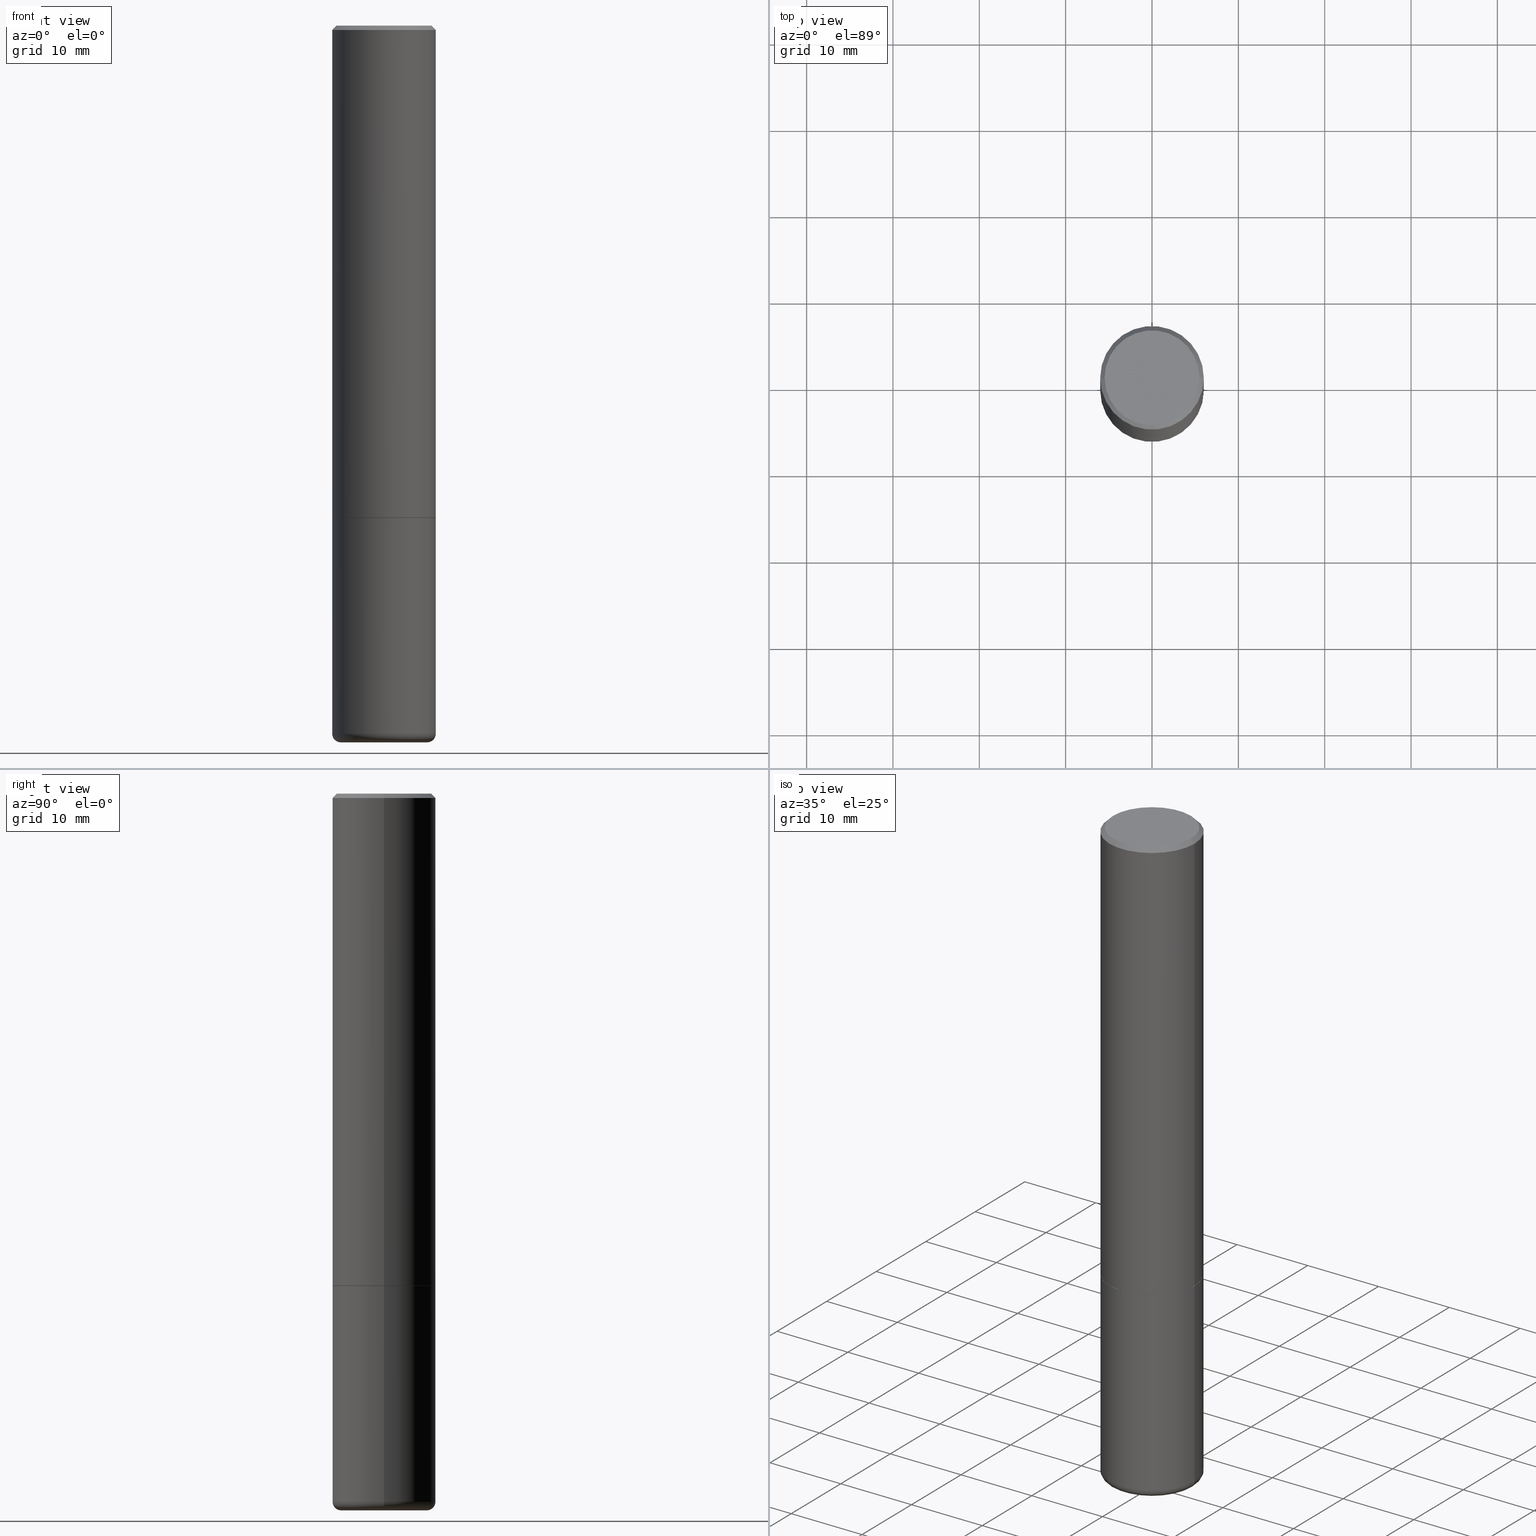
[diagram: canonical four-view strip — front | top / right | iso, engineering-drawing reading convention]
A machine part, canonical four-view strip (front | top / right | iso — engineering-drawing reading convention). The complete STEP part file that produces these views, byte-faithful:
ISO-10303-21;
HEADER;
FILE_DESCRIPTION (( 'STEP AP203' ),
    '1' );
FILE_NAME ('47019.STEP',
    '2024-03-05T11:50:57',
    ( '' ),
    ( '' ),
    'SwSTEP 2.0',
    'SolidWorks 2023',
    '' );
FILE_SCHEMA (( 'CONFIG_CONTROL_DESIGN' ));
ENDSEC;

DATA;
#1 = EDGE_LOOP ( 'NONE', ( #374, #151, #320, #314 ) ) ;
#2 = DIRECTION ( 'NONE',  ( -2.445468806185136597E-29, 3.491481338843145583E-15, 1.000000000000000000 ) ) ;
#3 = VECTOR ( 'NONE', #261, 39.37007874015748143 ) ;
#4 = LOCAL_TIME ( 6, 50, 57.00000000000000000, #416 ) ;
#5 = CARTESIAN_POINT ( 'NONE',  ( 5.485431079153880270E-29, -7.831741791159060910E-15, -2.243100000000000094 ) ) ;
#6 = PERSON_AND_ORGANIZATION ( #24, #278 ) ;
#7 = DIRECTION ( 'NONE',  ( 2.445468806185136597E-29, -3.491481338843145583E-15, -1.000000000000000000 ) ) ;
#8 = SHAPE_DEFINITION_REPRESENTATION ( #275, #395 ) ;
#9 = CARTESIAN_POINT ( 'NONE',  ( 0.2161999999999998368, -1.586759460484351002E-15, 1.451294246634248118E-16 ) ) ;
#10 = CONICAL_SURFACE ( 'NONE', #344, 0.2361999999999999933, 0.7853981633974473908 ) ;
#11 = CARTESIAN_POINT ( 'NONE',  ( -0.2351999999999999924, -6.164036757990146954E-15, -2.244099999999999984 ) ) ;
#12 = AXIS2_PLACEMENT_3D ( 'NONE', #411, #370, #207 ) ;
#13 = DIRECTION ( 'NONE',  ( 1.000000000000000000, -6.982962677686269077E-15, 0.000000000000000000 ) ) ;
#14 = ORIENTED_EDGE ( 'NONE', *, *, #393, .T. ) ;
#15 = AXIS2_PLACEMENT_3D ( 'NONE', #247, #339, #81 ) ;
#16 = DIRECTION ( 'NONE',  ( 7.105427357601001859E-15, 1.000000000000000000, -3.491481338843145583E-15 ) ) ;
#17 = DIRECTION ( 'NONE',  ( 2.438088387897960049E-29, -3.491481338843145188E-15, -1.000000000000000000 ) ) ;
#18 = CIRCLE ( 'NONE', #256, 0.1968000000000000027 ) ;
#19 = CARTESIAN_POINT ( 'NONE',  ( 7.991058417971171713E-29, -1.140911357093774644E-14, -3.267700000000000049 ) ) ;
#20 = ADVANCED_FACE ( 'NONE', ( #316 ), #27, .T. ) ;
#21 = EDGE_LOOP ( 'NONE', ( #251, #119 ) ) ;
#22 = DIRECTION ( 'NONE',  ( -2.445468806185136597E-29, 3.491481338843145583E-15, 1.000000000000000000 ) ) ;
#23 = CARTESIAN_POINT ( 'NONE',  ( 5.487876547960064752E-29, -7.835233272497902340E-15, -2.244099999999999984 ) ) ;
#24 = PERSON ( 'UNSPECIFIED', 'UNSPECIFIED', 'UNSPECIFIED', ('UNSPECIFIED'), ('UNSPECIFIED'), ('UNSPECIFIED') ) ;
#25 = DATE_AND_TIME ( #100, #123 ) ;
#26 = EDGE_LOOP ( 'NONE', ( #45, #138, #14, #32 ) ) ;
#27 = CONICAL_SURFACE ( 'NONE', #150, 0.2351999999999999924, 0.7853981633976873100 ) ;
#28 = APPLICATION_PROTOCOL_DEFINITION ( 'international standard', 'config_control_design', 1994, #305 ) ;
#29 = ORIENTED_EDGE ( 'NONE', *, *, #112, .T. ) ;
#30 = APPROVAL ( #191, 'UNSPECIFIED' ) ;
#31 = PERSON_AND_ORGANIZATION ( #24, #278 ) ;
#32 = ORIENTED_EDGE ( 'NONE', *, *, #324, .F. ) ;
#33 = DATE_AND_TIME ( #389, #108 ) ;
#34 = CARTESIAN_POINT ( 'NONE',  ( -3.549094808739746881E-45, 5.067166779293519988E-31, 1.451294246634139896E-16 ) ) ;
#35 = APPROVAL_STATUS ( 'not_yet_approved' ) ;
#36 = VECTOR ( 'NONE', #136, 39.37007874015748143 ) ;
#37 = CARTESIAN_POINT ( 'NONE',  ( 5.485431079153880270E-29, -7.831741791159060910E-15, -2.243100000000000094 ) ) ;
#38 = EDGE_CURVE ( 'NONE', #176, #340, #333, .T. ) ;
#39 = DIRECTION ( 'NONE',  ( -2.445468806185136597E-29, 3.491481338843145583E-15, 1.000000000000000000 ) ) ;
#40 = CYLINDRICAL_SURFACE ( 'NONE', #276, 0.2361999999999999933 ) ;
#41 = APPROVAL_DATE_TIME ( #383, #353 ) ;
#42 = APPROVAL_PERSON_ORGANIZATION ( #125, #30, #57 ) ;
#43 = CARTESIAN_POINT ( 'NONE',  ( 1.509716530915769534E-15, 0.2161999999999998368, -6.822935531261805704E-16 ) ) ;
#44 = ADVANCED_FACE ( 'NONE', ( #225 ), #407, .T. ) ;
#45 = ORIENTED_EDGE ( 'NONE', *, *, #351, .F. ) ;
#46 = DIRECTION ( 'NONE',  ( -2.438088387897960049E-29, 3.491481338843145188E-15, 1.000000000000000000 ) ) ;
#47 = CARTESIAN_POINT ( 'NONE',  ( 0.000000000000000000, 0.000000000000000000, 0.000000000000000000 ) ) ;
#48 = ORIENTED_EDGE ( 'NONE', *, *, #382, .F. ) ;
#49 = ADVANCED_FACE ( 'NONE', ( #55 ), #336, .T. ) ;
#50 = EDGE_LOOP ( 'NONE', ( #274, #29, #206, #48 ) ) ;
#51 = CIRCLE ( 'NONE', #292, 0.2362000000000002709 ) ;
#52 = DIRECTION ( 'NONE',  ( -2.445468806185136597E-29, 3.491481338843145583E-15, 1.000000000000000000 ) ) ;
#53 = DIRECTION ( 'NONE',  ( -2.445468806185136597E-29, 3.491481338843145583E-15, 1.000000000000000000 ) ) ;
#54 = DIRECTION ( 'NONE',  ( -2.445468806185136597E-29, 3.491481338843145583E-15, 1.000000000000000000 ) ) ;
#55 = FACE_OUTER_BOUND ( 'NONE', #26, .T. ) ;
#56 = CIRCLE ( 'NONE', #378, 0.2161999999999998368 ) ;
#57 = APPROVAL_ROLE ( '' ) ;
#58 = CC_DESIGN_APPROVAL ( #353, ( #302 ) ) ;
#59 = ORIENTED_EDGE ( 'NONE', *, *, #334, .T. ) ;
#60 = PERSON_AND_ORGANIZATION_ROLE ( 'creator' ) ;
#61 = LINE ( 'NONE', #167, #208 ) ;
#62 = ADVANCED_FACE ( 'NONE', ( #343 ), #254, .T. ) ;
#63 =( CONVERSION_BASED_UNIT ( 'INCH', #288 ) LENGTH_UNIT ( ) NAMED_UNIT ( #68 ) );
#64 = DIRECTION ( 'NONE',  ( -2.445468806185136597E-29, 3.491481338843145583E-15, 1.000000000000000000 ) ) ;
#65 = APPROVAL_STATUS ( 'not_yet_approved' ) ;
#66 = ADVANCED_FACE ( 'NONE', ( #249 ), #368, .T. ) ;
#67 = AXIS2_PLACEMENT_3D ( 'NONE', #87, #220, #186 ) ;
#68 = DIMENSIONAL_EXPONENTS ( 1.000000000000000000, 0.000000000000000000, 0.000000000000000000, 0.000000000000000000, 0.000000000000000000, 0.000000000000000000, 0.000000000000000000 ) ;
#69 = DIRECTION ( 'NONE',  ( 2.445468806185136597E-29, -3.491481338843145583E-15, -1.000000000000000000 ) ) ;
#70 = EDGE_CURVE ( 'NONE', #115, #372, #18, .T. ) ;
#71 = DIRECTION ( 'NONE',  ( -2.445468806185136877E-29, 3.491481338843145188E-15, 1.000000000000000000 ) ) ;
#72 = FACE_OUTER_BOUND ( 'NONE', #211, .T. ) ;
#73 = AXIS2_PLACEMENT_3D ( 'NONE', #183, #414, #318 ) ;
#74 = VERTEX_POINT ( 'NONE', #356 ) ;
#75 = CARTESIAN_POINT ( 'NONE',  ( 0.2361999999999999933, -1.690279253850498771E-15, -0.02000000000000005246 ) ) ;
#76 = AXIS2_PLACEMENT_3D ( 'NONE', #104, #168, #388 ) ;
#77 = ORIENTED_EDGE ( 'NONE', *, *, #396, .T. ) ;
#78 = PLANE ( 'NONE',  #190 ) ;
#79 = EDGE_CURVE ( 'NONE', #74, #246, #311, .T. ) ;
#80 = ORIENTED_EDGE ( 'NONE', *, *, #79, .F. ) ;
#81 = DIRECTION ( 'NONE',  ( 1.000000000000000000, -6.982962677686265133E-15, 0.000000000000000000 ) ) ;
#82 = DIRECTION ( 'NONE',  ( 1.000000000000000000, -6.982962677686268288E-15, 0.000000000000000000 ) ) ;
#83 = CARTESIAN_POINT ( 'NONE',  ( -3.549094808739746881E-45, 5.067166779293519988E-31, 1.451294246634139896E-16 ) ) ;
#84 = VERTEX_POINT ( 'NONE', #199 ) ;
#85 = AXIS2_PLACEMENT_3D ( 'NONE', #137, #17, #273 ) ;
#86 = CARTESIAN_POINT ( 'NONE',  ( -0.2362000000000002986, -2.272483767102600582E-15, -2.243100000000000094 ) ) ;
#87 = CARTESIAN_POINT ( 'NONE',  ( 5.487876547960064752E-29, -7.835233272497902340E-15, -2.244099999999999984 ) ) ;
#88 = PERSON_AND_ORGANIZATION ( #24, #278 ) ;
#89 = EDGE_CURVE ( 'NONE', #287, #84, #196, .T. ) ;
#90 = EDGE_LOOP ( 'NONE', ( #59, #175 ) ) ;
#91 = DIRECTION ( 'NONE',  ( 1.000000000000000000, -6.982962677686268288E-15, 0.000000000000000000 ) ) ;
#92 = AXIS2_PLACEMENT_3D ( 'NONE', #212, #16, #405 ) ;
#93 = CC_DESIGN_APPROVAL ( #30, ( #408 ) ) ;
#94 = PERSON_AND_ORGANIZATION_ROLE ( 'classification_officer' ) ;
#95 = FACE_OUTER_BOUND ( 'NONE', #21, .T. ) ;
#96 = ADVANCED_FACE ( 'NONE', ( #332 ), #40, .T. ) ;
#97 = CALENDAR_DATE ( 2024, 5, 3 ) ;
#98 = DIRECTION ( 'NONE',  ( -1.000000000000000000, 6.982962677686266711E-15, 0.000000000000000000 ) ) ;
#99 = EDGE_CURVE ( 'NONE', #381, #84, #307, .T. ) ;
#100 = CALENDAR_DATE ( 2024, 5, 3 ) ;
#101 = DIRECTION ( 'NONE',  ( -2.445468806185136597E-29, 3.491481338843145583E-15, 1.000000000000000000 ) ) ;
#102 = ADVANCED_FACE ( 'NONE', ( #72 ), #358, .T. ) ;
#103 =( GEOMETRIC_REPRESENTATION_CONTEXT ( 3 ) GLOBAL_UNCERTAINTY_ASSIGNED_CONTEXT ( ( #139 ) ) GLOBAL_UNIT_ASSIGNED_CONTEXT ( ( #63, #286, #226 ) ) REPRESENTATION_CONTEXT ( 'NONE', 'WORKASPACE' ) );
#104 = CARTESIAN_POINT ( 'NONE',  ( 5.487876547960065873E-29, -7.835233272497903917E-15, -2.244100000000000428 ) ) ;
#105 = EDGE_CURVE ( 'NONE', #272, #287, #189, .T. ) ;
#106 = FACE_OUTER_BOUND ( 'NONE', #192, .T. ) ;
#107 = LINE ( 'NONE', #309, #204 ) ;
#108 = LOCAL_TIME ( 6, 50, 57.00000000000000000, #129 ) ;
#109 = ORIENTED_EDGE ( 'NONE', *, *, #142, .F. ) ;
#110 = ORIENTED_EDGE ( 'NONE', *, *, #377, .F. ) ;
#111 = CARTESIAN_POINT ( 'NONE',  ( 0.1968000000000000027, -1.264579626115598374E-14, -3.228299999999999947 ) ) ;
#112 = EDGE_CURVE ( 'NONE', #246, #205, #61, .T. ) ;
#113 = CIRCLE ( 'NONE', #92, 0.03940000000000005997 ) ;
#114 = CIRCLE ( 'NONE', #299, 0.2351999999999999924 ) ;
#115 = VERTEX_POINT ( 'NONE', #133 ) ;
#116 = CARTESIAN_POINT ( 'NONE',  ( 0.2361999999999999933, -9.484609056967400443E-15, -2.244100000000000428 ) ) ;
#117 = ORIENTED_EDGE ( 'NONE', *, *, #99, .T. ) ;
#118 = DIRECTION ( 'NONE',  ( -2.445468806185136597E-29, 3.491481338843145583E-15, 1.000000000000000000 ) ) ;
#119 = ORIENTED_EDGE ( 'NONE', *, *, #364, .F. ) ;
#120 = DIRECTION ( 'NONE',  ( 1.000000000000000000, -6.982962677686268288E-15, 0.000000000000000000 ) ) ;
#121 = ORIENTED_EDGE ( 'NONE', *, *, #89, .F. ) ;
#122 = AXIS2_PLACEMENT_3D ( 'NONE', #166, #64, #326 ) ;
#123 = LOCAL_TIME ( 6, 50, 57.00000000000000000, #391 ) ;
#124 = ORIENTED_EDGE ( 'NONE', *, *, #393, .F. ) ;
#125 = PERSON_AND_ORGANIZATION ( #24, #278 ) ;
#126 = DIRECTION ( 'NONE',  ( -2.445468806185136597E-29, 3.491481338843145583E-15, 1.000000000000000000 ) ) ;
#127 = CARTESIAN_POINT ( 'NONE',  ( 0.2351999999999999924, -9.477626094289712851E-15, -2.244099999999999984 ) ) ;
#128 = VECTOR ( 'NONE', #71, 39.37007874015748143 ) ;
#129 = COORDINATED_UNIVERSAL_TIME_OFFSET ( 5, 0, .BEHIND. ) ;
#130 = DIRECTION ( 'NONE',  ( 1.000000000000000000, -6.982962677686269077E-15, 0.000000000000000000 ) ) ;
#131 = APPROVAL_DATE_TIME ( #33, #404 ) ;
#132 = DIRECTION ( 'NONE',  ( 1.000000000000000000, -6.982962677686266711E-15, 4.881916136609865378E-29 ) ) ;
#133 = CARTESIAN_POINT ( 'NONE',  ( 0.1968000000000000027, -1.278336062590640454E-14, -3.267700000000000049 ) ) ;
#134 = PRODUCT_DEFINITION ( 'UNKNOWN', '', #408, #187 ) ;
#135 = AXIS2_PLACEMENT_3D ( 'NONE', #19, #54, #267 ) ;
#136 = DIRECTION ( 'NONE',  ( -0.7071067811867165487, 7.493145998870964739E-15, 0.7071067811863784858 ) ) ;
#137 = CARTESIAN_POINT ( 'NONE',  ( 5.487876547960065873E-29, -7.835233272497903917E-15, -2.244100000000000428 ) ) ;
#138 = ORIENTED_EDGE ( 'NONE', *, *, #364, .T. ) ;
#139 = UNCERTAINTY_MEASURE_WITH_UNIT (LENGTH_MEASURE( 1.000000000000000082E-05 ), #63, 'distance_accuracy_value', 'NONE');
#140 = VECTOR ( 'NONE', #243, 39.37007874015748143 ) ;
#141 = CC_DESIGN_SECURITY_CLASSIFICATION ( #302, ( #408 ) ) ;
#142 = EDGE_CURVE ( 'NONE', #146, #304, #216, .T. ) ;
#143 = CC_DESIGN_PERSON_AND_ORGANIZATION_ASSIGNMENT ( #387, #94, ( #302 ) ) ;
#144 = ORIENTED_EDGE ( 'NONE', *, *, #382, .T. ) ;
#145 = DIRECTION ( 'NONE',  ( 1.000000000000000000, -6.982962677686266711E-15, 4.881916136609865378E-29 ) ) ;
#146 = VERTEX_POINT ( 'NONE', #9 ) ;
#147 = ADVANCED_FACE ( 'NONE', ( #106 ), #262, .T. ) ;
#148 = CARTESIAN_POINT ( 'NONE',  ( 0.2362000000000002709, -9.481117575628559013E-15, -2.243100000000000094 ) ) ;
#149 = CLOSED_SHELL ( 'NONE', ( #96, #44, #271, #62, #49, #222 ) ) ;
#150 = AXIS2_PLACEMENT_3D ( 'NONE', #412, #386, #82 ) ;
#151 = ORIENTED_EDGE ( 'NONE', *, *, #214, .T. ) ;
#152 = PLANE ( 'NONE',  #85 ) ;
#153 = ORIENTED_EDGE ( 'NONE', *, *, #112, .F. ) ;
#154 = CARTESIAN_POINT ( 'NONE',  ( 0.2361999999999999933, -1.690279253850498771E-15, -0.02000000000000005246 ) ) ;
#155 = CLOSED_SHELL ( 'NONE', ( #66, #239, #171, #102, #147, #20, #398, #159 ) ) ;
#156 = ORIENTED_EDGE ( 'NONE', *, *, #38, .F. ) ;
#157 = AXIS2_PLACEMENT_3D ( 'NONE', #282, #2, #223 ) ;
#158 = EDGE_LOOP ( 'NONE', ( #289, #306, #402, #308 ) ) ;
#159 = ADVANCED_FACE ( 'NONE', ( #394 ), #259, .F. ) ;
#160 = SECURITY_CLASSIFICATION_LEVEL ( 'unclassified' ) ;
#161 = ORIENTED_EDGE ( 'NONE', *, *, #348, .F. ) ;
#162 = DATE_AND_TIME ( #193, #294 ) ;
#163 = DIRECTION ( 'NONE',  ( 1.000000000000000000, -6.982962677686266711E-15, 4.876176775795936353E-29 ) ) ;
#164 = AXIS2_PLACEMENT_3D ( 'NONE', #47, #22, #281 ) ;
#165 = APPROVAL_ROLE ( '' ) ;
#166 = CARTESIAN_POINT ( 'NONE',  ( 4.890937612370285420E-31, -6.982962677686308865E-17, -0.02000000000000005246 ) ) ;
#167 = CARTESIAN_POINT ( 'NONE',  ( -0.2361999999999999933, 1.678301941865356591E-15, -1.161852468318208757E-29 ) ) ;
#168 = DIRECTION ( 'NONE',  ( -2.445468806185136597E-29, 3.491481338843145583E-15, 1.000000000000000000 ) ) ;
#169 = APPROVAL_PERSON_ORGANIZATION ( #88, #404, #325 ) ;
#170 = CARTESIAN_POINT ( 'NONE',  ( -0.2362000000000001321, 1.678301941865357577E-15, -1.161852468318209457E-29 ) ) ;
#171 = ADVANCED_FACE ( 'NONE', ( #293 ), #10, .T. ) ;
#172 = ORIENTED_EDGE ( 'NONE', *, *, #89, .T. ) ;
#173 = ORIENTED_EDGE ( 'NONE', *, *, #70, .T. ) ;
#174 = AXIS2_PLACEMENT_3D ( 'NONE', #37, #39, #130 ) ;
#175 = ORIENTED_EDGE ( 'NONE', *, *, #198, .T. ) ;
#176 = VERTEX_POINT ( 'NONE', #127 ) ;
#177 = DIRECTION ( 'NONE',  ( 1.000000000000000000, -6.982962677686265922E-15, 4.876176775795935793E-29 ) ) ;
#178 =( LENGTH_UNIT ( ) NAMED_UNIT ( * ) SI_UNIT ( $, .METRE. ) );
#179 = AXIS2_PLACEMENT_3D ( 'NONE', #43, #230, #231 ) ;
#180 = APPROVAL_PERSON_ORGANIZATION ( #258, #353, #165 ) ;
#181 = ORIENTED_EDGE ( 'NONE', *, *, #396, .F. ) ;
#182 = CARTESIAN_POINT ( 'NONE',  ( -0.2161999999999998368, 1.544631344304201775E-15, 1.451294246634033154E-16 ) ) ;
#183 = CARTESIAN_POINT ( 'NONE',  ( 0.000000000000000000, 0.000000000000000000, 0.000000000000000000 ) ) ;
#184 = DIRECTION ( 'NONE',  ( -6.982962677686266711E-15, -1.000000000000000000, 3.491481338843145583E-15 ) ) ;
#185 = EDGE_CURVE ( 'NONE', #304, #84, #392, .T. ) ;
#186 = DIRECTION ( 'NONE',  ( 1.000000000000000000, -6.982962677686268288E-15, 0.000000000000000000 ) ) ;
#187 = DESIGN_CONTEXT ( 'detailed design', #342, 'design' ) ;
#188 = EDGE_LOOP ( 'NONE', ( #156, #161 ) ) ;
#189 = CIRCLE ( 'NONE', #174, 0.2362000000000002709 ) ;
#190 = AXIS2_PLACEMENT_3D ( 'NONE', #210, #46, #177 ) ;
#191 = APPROVAL_STATUS ( 'not_yet_approved' ) ;
#192 = EDGE_LOOP ( 'NONE', ( #121, #349, #352, #181 ) ) ;
#193 = CALENDAR_DATE ( 2024, 5, 3 ) ;
#194 = DIRECTION ( 'NONE',  ( -1.000000000000000000, 6.982962677686265922E-15, -4.876176775795935793E-29 ) ) ;
#195 = APPROVAL_DATE_TIME ( #25, #30 ) ;
#196 = LINE ( 'NONE', #170, #128 ) ;
#197 = VECTOR ( 'NONE', #245, 39.37007874015748143 ) ;
#198 = EDGE_CURVE ( 'NONE', #205, #323, #237, .T. ) ;
#199 = CARTESIAN_POINT ( 'NONE',  ( -0.2361999999999999933, 1.579546157692633030E-15, -0.02000000000000005246 ) ) ;
#200 = PRODUCT ( '47019', '47019', '', ( #357 ) ) ;
#201 = DIRECTION ( 'NONE',  ( 1.000000000000000000, -6.982962677686271444E-15, 0.000000000000000000 ) ) ;
#202 = DIRECTION ( 'NONE',  ( -2.445468806185136877E-29, 3.491481338843145188E-15, 1.000000000000000000 ) ) ;
#203 = AXIS2_PLACEMENT_3D ( 'NONE', #417, #126, #213 ) ;
#204 = VECTOR ( 'NONE', #367, 39.37007874015748143 ) ;
#205 = VERTEX_POINT ( 'NONE', #362 ) ;
#206 = ORIENTED_EDGE ( 'NONE', *, *, #334, .F. ) ;
#207 = DIRECTION ( 'NONE',  ( 1.000000000000000000, -6.982962677686266711E-15, 0.000000000000000000 ) ) ;
#208 = VECTOR ( 'NONE', #202, 39.37007874015748143 ) ;
#209 = ORIENTED_EDGE ( 'NONE', *, *, #351, .T. ) ;
#210 = CARTESIAN_POINT ( 'NONE',  ( 5.487876547960065873E-29, -7.835233272497903917E-15, -2.244100000000000428 ) ) ;
#211 = EDGE_LOOP ( 'NONE', ( #403, #335, #346, #77 ) ) ;
#212 = CARTESIAN_POINT ( 'NONE',  ( -0.1968000000000000027, -9.873201102211451027E-15, -3.228299999999999947 ) ) ;
#213 = DIRECTION ( 'NONE',  ( 1.000000000000000000, -6.982962677686270655E-15, 4.883557194083114583E-29 ) ) ;
#214 = EDGE_CURVE ( 'NONE', #340, #287, #298, .T. ) ;
#215 = FACE_OUTER_BOUND ( 'NONE', #354, .T. ) ;
#216 = CIRCLE ( 'NONE', #232, 0.2161999999999998368 ) ;
#217 = AXIS2_PLACEMENT_3D ( 'NONE', #111, #184, #240 ) ;
#218 = ORIENTED_EDGE ( 'NONE', *, *, #185, .F. ) ;
#219 = DIRECTION ( 'NONE',  ( -2.445468806185136597E-29, 3.491481338843145583E-15, 1.000000000000000000 ) ) ;
#220 = DIRECTION ( 'NONE',  ( -2.445468806185136597E-29, 3.491481338843145583E-15, 1.000000000000000000 ) ) ;
#221 = COORDINATED_UNIVERSAL_TIME_OFFSET ( 5, 0, .BEHIND. ) ;
#222 = ADVANCED_FACE ( 'NONE', ( #95 ), #266, .T. ) ;
#223 = DIRECTION ( 'NONE',  ( 1.000000000000000000, -6.982962677686270655E-15, 4.883557194083114583E-29 ) ) ;
#224 = PERSON_AND_ORGANIZATION_ROLE ( 'design_owner' ) ;
#225 = FACE_OUTER_BOUND ( 'NONE', #270, .T. ) ;
#226 =( NAMED_UNIT ( * ) SI_UNIT ( $, .STERADIAN. ) SOLID_ANGLE_UNIT ( ) );
#227 = MANIFOLD_SOLID_BREP ( 'Body-Move/Copy2[1]', #149 ) ;
#228 = DIRECTION ( 'NONE',  ( 2.438088387897960049E-29, -3.491481338843145188E-15, -1.000000000000000000 ) ) ;
#229 = APPLICATION_PROTOCOL_DEFINITION ( 'international standard', 'config_control_design', 1994, #342 ) ;
#230 = DIRECTION ( 'NONE',  ( 2.438088387897960049E-29, -3.491481338843145188E-15, -1.000000000000000000 ) ) ;
#231 = DIRECTION ( 'NONE',  ( -1.000000000000000000, 6.982962677686265922E-15, -4.876176775795935793E-29 ) ) ;
#232 = AXIS2_PLACEMENT_3D ( 'NONE', #34, #297, #132 ) ;
#233 = DIRECTION ( 'NONE',  ( -1.000000000000000000, 6.982962677686266711E-15, 0.000000000000000000 ) ) ;
#234 = EDGE_CURVE ( 'NONE', #287, #272, #51, .T. ) ;
#235 = CARTESIAN_POINT ( 'NONE',  ( 7.991058417971171713E-29, -1.140911357093774644E-14, -3.267700000000000049 ) ) ;
#236 = CYLINDRICAL_SURFACE ( 'NONE', #164, 0.2362000000000001321 ) ;
#237 = CIRCLE ( 'NONE', #76, 0.2361999999999999933 ) ;
#238 = EDGE_LOOP ( 'NONE', ( #244, #406 ) ) ;
#239 = ADVANCED_FACE ( 'NONE', ( #215 ), #236, .T. ) ;
#240 = DIRECTION ( 'NONE',  ( 1.000000000000000000, -6.982962677686267499E-15, 0.000000000000000000 ) ) ;
#241 = CIRCLE ( 'NONE', #15, 0.2361999999999999933 ) ;
#242 = ORIENTED_EDGE ( 'NONE', *, *, #324, .T. ) ;
#243 = DIRECTION ( 'NONE',  ( 0.7071067811867165487, -2.468850131084027659E-15, 0.7071067811863784858 ) ) ;
#244 = ORIENTED_EDGE ( 'NONE', *, *, #295, .T. ) ;
#245 = DIRECTION ( 'NONE',  ( 0.7071067811865469066, -7.319954787623254468E-15, -0.7071067811865481278 ) ) ;
#246 = VERTEX_POINT ( 'NONE', #310 ) ;
#247 = CARTESIAN_POINT ( 'NONE',  ( 7.894706947007477118E-29, -1.127154920618732880E-14, -3.228299999999999947 ) ) ;
#248 = CIRCLE ( 'NONE', #300, 0.2361999999999999933 ) ;
#249 = FACE_OUTER_BOUND ( 'NONE', #1, .T. ) ;
#250 = CALENDAR_DATE ( 2024, 5, 3 ) ;
#251 = ORIENTED_EDGE ( 'NONE', *, *, #70, .F. ) ;
#252 = DIRECTION ( 'NONE',  ( 1.000000000000000000, 0.000000000000000000, 0.000000000000000000 ) ) ;
#253 = CC_DESIGN_DATE_AND_TIME_ASSIGNMENT ( #260, #317, ( #134 ) ) ;
#254 = CYLINDRICAL_SURFACE ( 'NONE', #73, 0.2361999999999999933 ) ;
#255 = PERSON_AND_ORGANIZATION ( #24, #278 ) ;
#256 = AXIS2_PLACEMENT_3D ( 'NONE', #285, #397, #201 ) ;
#257 = CARTESIAN_POINT ( 'NONE',  ( 4.890937612370285420E-31, -6.982962677686308865E-17, -0.02000000000000005246 ) ) ;
#258 = PERSON_AND_ORGANIZATION ( #24, #278 ) ;
#259 = PLANE ( 'NONE',  #179 ) ;
#260 = DATE_AND_TIME ( #97, #401 ) ;
#261 = DIRECTION ( 'NONE',  ( -0.7071067811865469066, 2.468850131082250355E-15, -0.7071067811865481278 ) ) ;
#262 = CYLINDRICAL_SURFACE ( 'NONE', #263, 0.2362000000000001321 ) ;
#263 = AXIS2_PLACEMENT_3D ( 'NONE', #296, #328, #163 ) ;
#264 = PRODUCT_RELATED_PRODUCT_CATEGORY ( 'detail', '', ( #200 ) ) ;
#265 = AXIS2_PLACEMENT_3D ( 'NONE', #350, #385, #252 ) ;
#266 = PLANE ( 'NONE',  #319 ) ;
#267 = DIRECTION ( 'NONE',  ( 1.000000000000000000, -6.982962677686271444E-15, 0.000000000000000000 ) ) ;
#268 = AXIS2_PLACEMENT_3D ( 'NONE', #23, #53, #91 ) ;
#269 = CIRCLE ( 'NONE', #135, 0.1968000000000000027 ) ;
#270 = EDGE_LOOP ( 'NONE', ( #173, #209, #80, #124 ) ) ;
#271 = ADVANCED_FACE ( 'NONE', ( #409 ), #152, .F. ) ;
#272 = VERTEX_POINT ( 'NONE', #148 ) ;
#273 = DIRECTION ( 'NONE',  ( -1.000000000000000000, 6.982962677686265922E-15, -4.876176775795935793E-29 ) ) ;
#274 = ORIENTED_EDGE ( 'NONE', *, *, #79, .T. ) ;
#275 = PRODUCT_DEFINITION_SHAPE ( 'NONE', 'NONE',  #134 ) ;
#276 = AXIS2_PLACEMENT_3D ( 'NONE', #390, #330, #329 ) ;
#277 = CARTESIAN_POINT ( 'NONE',  ( 0.2351999999999999924, -9.477626094289712851E-15, -2.244099999999999984 ) ) ;
#278 = ORGANIZATION ( 'UNSPECIFIED', 'UNSPECIFIED', '' ) ;
#279 = DIRECTION ( 'NONE',  ( -2.445468806185136877E-29, 3.491481338843145188E-15, 1.000000000000000000 ) ) ;
#280 = ORIENTED_EDGE ( 'NONE', *, *, #198, .F. ) ;
#281 = DIRECTION ( 'NONE',  ( 1.000000000000000000, -6.982962677686266711E-15, 4.876176775795936353E-29 ) ) ;
#282 = CARTESIAN_POINT ( 'NONE',  ( 7.894706947007477118E-29, -1.127154920618732880E-14, -3.228299999999999947 ) ) ;
#283 = COORDINATED_UNIVERSAL_TIME_OFFSET ( 5, 0, .BEHIND. ) ;
#284 = VECTOR ( 'NONE', #279, 39.37007874015748143 ) ;
#285 = CARTESIAN_POINT ( 'NONE',  ( 7.991058417971171713E-29, -1.140911357093774644E-14, -3.267700000000000049 ) ) ;
#286 =( NAMED_UNIT ( * ) PLANE_ANGLE_UNIT ( ) SI_UNIT ( $, .RADIAN. ) );
#287 = VERTEX_POINT ( 'NONE', #86 ) ;
#288 = LENGTH_MEASURE_WITH_UNIT ( LENGTH_MEASURE( 0.02539999999999999897 ), #178 );
#289 = ORIENTED_EDGE ( 'NONE', *, *, #214, .F. ) ;
#290 = DATE_TIME_ROLE ( 'classification_date' ) ;
#291 = EDGE_CURVE ( 'NONE', #176, #272, #379, .T. ) ;
#292 = AXIS2_PLACEMENT_3D ( 'NONE', #5, #52, #413 ) ;
#293 = FACE_OUTER_BOUND ( 'NONE', #338, .T. ) ;
#294 = LOCAL_TIME ( 6, 50, 57.00000000000000000, #283 ) ;
#295 = EDGE_CURVE ( 'NONE', #304, #146, #56, .T. ) ;
#296 = CARTESIAN_POINT ( 'NONE',  ( 0.000000000000000000, 0.000000000000000000, 0.000000000000000000 ) ) ;
#297 = DIRECTION ( 'NONE',  ( -2.445468806185136597E-29, 3.491481338843145583E-15, 1.000000000000000000 ) ) ;
#298 = LINE ( 'NONE', #11, #36 ) ;
#299 = AXIS2_PLACEMENT_3D ( 'NONE', #315, #373, #120 ) ;
#300 = AXIS2_PLACEMENT_3D ( 'NONE', #312, #219, #13 ) ;
#301 = CC_DESIGN_PERSON_AND_ORGANIZATION_ASSIGNMENT ( #31, #322, ( #408 ) ) ;
#302 = SECURITY_CLASSIFICATION ( '', '', #160 ) ;
#303 = CARTESIAN_POINT ( 'NONE',  ( 7.894706947007477118E-29, -1.127154920618732880E-14, -3.228299999999999947 ) ) ;
#304 = VERTEX_POINT ( 'NONE', #182 ) ;
#305 = APPLICATION_CONTEXT ( 'configuration controlled 3d designs of mechanical parts and assemblies' ) ;
#306 = ORIENTED_EDGE ( 'NONE', *, *, #348, .T. ) ;
#307 = CIRCLE ( 'NONE', #122, 0.2361999999999999933 ) ;
#308 = ORIENTED_EDGE ( 'NONE', *, *, #234, .F. ) ;
#309 = CARTESIAN_POINT ( 'NONE',  ( 0.2361999999999999933, -1.649375784469496131E-15, 1.151752954443000088E-29 ) ) ;
#310 = CARTESIAN_POINT ( 'NONE',  ( -0.2362000000000000210, -9.593247264321970832E-15, -3.228299999999999947 ) ) ;
#311 = CIRCLE ( 'NONE', #415, 0.2361999999999999933 ) ;
#312 = CARTESIAN_POINT ( 'NONE',  ( 5.487876547960065873E-29, -7.835233272497903917E-15, -2.244100000000000428 ) ) ;
#313 = CIRCLE ( 'NONE', #217, 0.03940000000000005997 ) ;
#314 = ORIENTED_EDGE ( 'NONE', *, *, #291, .F. ) ;
#315 = CARTESIAN_POINT ( 'NONE',  ( 5.487876547960064752E-29, -7.835233272497902340E-15, -2.244099999999999984 ) ) ;
#316 = FACE_OUTER_BOUND ( 'NONE', #158, .T. ) ;
#317 = DATE_TIME_ROLE ( 'creation_date' ) ;
#318 = DIRECTION ( 'NONE',  ( 1.000000000000000000, -6.982962677686266711E-15, 4.876176775795936353E-29 ) ) ;
#319 = AXIS2_PLACEMENT_3D ( 'NONE', #235, #228, #194 ) ;
#320 = ORIENTED_EDGE ( 'NONE', *, *, #105, .F. ) ;
#321 = EDGE_CURVE ( 'NONE', #146, #381, #345, .T. ) ;
#322 = PERSON_AND_ORGANIZATION_ROLE ( 'design_supplier' ) ;
#323 = VERTEX_POINT ( 'NONE', #116 ) ;
#324 = EDGE_CURVE ( 'NONE', #246, #74, #241, .T. ) ;
#325 = APPROVAL_ROLE ( '' ) ;
#326 = DIRECTION ( 'NONE',  ( 1.000000000000000000, -6.982962677686266711E-15, 0.000000000000000000 ) ) ;
#327 = PERSON_AND_ORGANIZATION_ROLE ( 'creator' ) ;
#328 = DIRECTION ( 'NONE',  ( -2.445468806185136597E-29, 3.491481338843145583E-15, 1.000000000000000000 ) ) ;
#329 = DIRECTION ( 'NONE',  ( 1.000000000000000000, -6.982962677686266711E-15, 4.876176775795936353E-29 ) ) ;
#330 = DIRECTION ( 'NONE',  ( -2.445468806185136597E-29, 3.491481338843145583E-15, 1.000000000000000000 ) ) ;
#331 = CC_DESIGN_PERSON_AND_ORGANIZATION_ASSIGNMENT ( #418, #60, ( #134 ) ) ;
#332 = FACE_OUTER_BOUND ( 'NONE', #50, .T. ) ;
#333 = CIRCLE ( 'NONE', #268, 0.2351999999999999924 ) ;
#334 = EDGE_CURVE ( 'NONE', #323, #205, #248, .T. ) ;
#335 = ORIENTED_EDGE ( 'NONE', *, *, #295, .F. ) ;
#336 = TOROIDAL_SURFACE ( 'NONE', #157, 0.1968000000000000027, 0.03940000000000005997 ) ;
#337 = FACE_OUTER_BOUND ( 'NONE', #188, .T. ) ;
#338 = EDGE_LOOP ( 'NONE', ( #109, #384, #117, #218 ) ) ;
#339 = DIRECTION ( 'NONE',  ( -2.445468806185136597E-29, 3.491481338843145583E-15, 1.000000000000000000 ) ) ;
#340 = VERTEX_POINT ( 'NONE', #347 ) ;
#341 = CARTESIAN_POINT ( 'NONE',  ( -0.1968000000000000027, -9.802006365641922115E-15, -3.267700000000000049 ) ) ;
#342 = APPLICATION_CONTEXT ( 'configuration controlled 3d designs of mechanical parts and assemblies' ) ;
#343 = FACE_OUTER_BOUND ( 'NONE', #400, .T. ) ;
#344 = AXIS2_PLACEMENT_3D ( 'NONE', #359, #69, #233 ) ;
#345 = LINE ( 'NONE', #75, #197 ) ;
#346 = ORIENTED_EDGE ( 'NONE', *, *, #185, .T. ) ;
#347 = CARTESIAN_POINT ( 'NONE',  ( -0.2351999999999999924, -6.158738303641923763E-15, -2.244099999999999984 ) ) ;
#348 = EDGE_CURVE ( 'NONE', #340, #176, #114, .T. ) ;
#349 = ORIENTED_EDGE ( 'NONE', *, *, #234, .T. ) ;
#350 = CARTESIAN_POINT ( 'NONE',  ( 0.000000000000000000, 0.000000000000000000, 0.000000000000000000 ) ) ;
#351 = EDGE_CURVE ( 'NONE', #372, #246, #113, .T. ) ;
#352 = ORIENTED_EDGE ( 'NONE', *, *, #377, .T. ) ;
#353 = APPROVAL ( #35, 'UNSPECIFIED' ) ;
#354 = EDGE_LOOP ( 'NONE', ( #410, #172, #376, #110 ) ) ;
#355 = DIRECTION ( 'NONE',  ( 1.000000000000000000, -6.982962677686265133E-15, 0.000000000000000000 ) ) ;
#356 = CARTESIAN_POINT ( 'NONE',  ( 0.2362000000000000210, -1.292092499065682375E-14, -3.228299999999999947 ) ) ;
#357 = MECHANICAL_CONTEXT ( 'NONE', #305, 'mechanical' ) ;
#358 = CONICAL_SURFACE ( 'NONE', #363, 0.2361999999999999933, 0.7853981633974473908 ) ;
#359 = CARTESIAN_POINT ( 'NONE',  ( 4.890937612370285420E-31, -6.982962677686308865E-17, -0.02000000000000005246 ) ) ;
#360 = CC_DESIGN_PERSON_AND_ORGANIZATION_ASSIGNMENT ( #6, #224, ( #200 ) ) ;
#361 = CARTESIAN_POINT ( 'NONE',  ( -0.2361999999999999933, 1.579546157692633030E-15, -0.02000000000000005246 ) ) ;
#362 = CARTESIAN_POINT ( 'NONE',  ( -0.2361999999999999933, -7.875089297477259967E-15, -2.244100000000000428 ) ) ;
#363 = AXIS2_PLACEMENT_3D ( 'NONE', #257, #7, #98 ) ;
#364 = EDGE_CURVE ( 'NONE', #372, #115, #269, .T. ) ;
#365 = CIRCLE ( 'NONE', #12, 0.2361999999999999933 ) ;
#366 = CC_DESIGN_DATE_AND_TIME_ASSIGNMENT ( #162, #290, ( #302 ) ) ;
#367 = DIRECTION ( 'NONE',  ( -2.445468806185136877E-29, 3.491481338843145188E-15, 1.000000000000000000 ) ) ;
#368 = CONICAL_SURFACE ( 'NONE', #67, 0.2351999999999999924, 0.7853981633976873100 ) ;
#369 = MANIFOLD_SOLID_BREP ( 'Body-Move/Copy2[2]', #155 ) ;
#370 = DIRECTION ( 'NONE',  ( -2.445468806185136597E-29, 3.491481338843145583E-15, 1.000000000000000000 ) ) ;
#371 = CC_DESIGN_PERSON_AND_ORGANIZATION_ASSIGNMENT ( #255, #327, ( #408 ) ) ;
#372 = VERTEX_POINT ( 'NONE', #341 ) ;
#373 = DIRECTION ( 'NONE',  ( -2.445468806185136597E-29, 3.491481338843145583E-15, 1.000000000000000000 ) ) ;
#374 = ORIENTED_EDGE ( 'NONE', *, *, #38, .T. ) ;
#375 = CARTESIAN_POINT ( 'NONE',  ( 0.2362000000000001321, -1.649375784469497117E-15, 1.151752954443000789E-29 ) ) ;
#376 = ORIENTED_EDGE ( 'NONE', *, *, #99, .F. ) ;
#377 = EDGE_CURVE ( 'NONE', #272, #381, #399, .T. ) ;
#378 = AXIS2_PLACEMENT_3D ( 'NONE', #83, #118, #145 ) ;
#379 = LINE ( 'NONE', #277, #140 ) ;
#380 = CC_DESIGN_APPROVAL ( #404, ( #134 ) ) ;
#381 = VERTEX_POINT ( 'NONE', #154 ) ;
#382 = EDGE_CURVE ( 'NONE', #74, #323, #107, .T. ) ;
#383 = DATE_AND_TIME ( #250, #4 ) ;
#384 = ORIENTED_EDGE ( 'NONE', *, *, #321, .T. ) ;
#385 = DIRECTION ( 'NONE',  ( 0.000000000000000000, 0.000000000000000000, 1.000000000000000000 ) ) ;
#386 = DIRECTION ( 'NONE',  ( -2.445468806185136597E-29, 3.491481338843145583E-15, 1.000000000000000000 ) ) ;
#387 = PERSON_AND_ORGANIZATION ( #24, #278 ) ;
#388 = DIRECTION ( 'NONE',  ( 1.000000000000000000, -6.982962677686269077E-15, 0.000000000000000000 ) ) ;
#389 = CALENDAR_DATE ( 2024, 5, 3 ) ;
#390 = CARTESIAN_POINT ( 'NONE',  ( 0.000000000000000000, 0.000000000000000000, 0.000000000000000000 ) ) ;
#391 = COORDINATED_UNIVERSAL_TIME_OFFSET ( 5, 0, .BEHIND. ) ;
#392 = LINE ( 'NONE', #361, #3 ) ;
#393 = EDGE_CURVE ( 'NONE', #115, #74, #313, .T. ) ;
#394 = FACE_OUTER_BOUND ( 'NONE', #238, .T. ) ;
#395 = ADVANCED_BREP_SHAPE_REPRESENTATION ( '47019', ( #227, #369, #265 ), #103 ) ;
#396 = EDGE_CURVE ( 'NONE', #84, #381, #365, .T. ) ;
#397 = DIRECTION ( 'NONE',  ( -2.445468806185136597E-29, 3.491481338843145583E-15, 1.000000000000000000 ) ) ;
#398 = ADVANCED_FACE ( 'NONE', ( #337 ), #78, .F. ) ;
#399 = LINE ( 'NONE', #375, #284 ) ;
#400 = EDGE_LOOP ( 'NONE', ( #153, #242, #144, #280 ) ) ;
#401 = LOCAL_TIME ( 6, 50, 57.00000000000000000, #221 ) ;
#402 = ORIENTED_EDGE ( 'NONE', *, *, #291, .T. ) ;
#403 = ORIENTED_EDGE ( 'NONE', *, *, #321, .F. ) ;
#404 = APPROVAL ( #65, 'UNSPECIFIED' ) ;
#405 = DIRECTION ( 'NONE',  ( -1.000000000000000000, 7.105427357601014480E-15, 0.000000000000000000 ) ) ;
#406 = ORIENTED_EDGE ( 'NONE', *, *, #142, .T. ) ;
#407 = TOROIDAL_SURFACE ( 'NONE', #203, 0.1968000000000000027, 0.03940000000000005997 ) ;
#408 = PRODUCT_DEFINITION_FORMATION_WITH_SPECIFIED_SOURCE ( 'ANY', '', #200, .NOT_KNOWN. ) ;
#409 = FACE_OUTER_BOUND ( 'NONE', #90, .T. ) ;
#410 = ORIENTED_EDGE ( 'NONE', *, *, #105, .T. ) ;
#411 = CARTESIAN_POINT ( 'NONE',  ( 4.890937612370285420E-31, -6.982962677686308865E-17, -0.02000000000000005246 ) ) ;
#412 = CARTESIAN_POINT ( 'NONE',  ( 5.487876547960064752E-29, -7.835233272497902340E-15, -2.244099999999999984 ) ) ;
#413 = DIRECTION ( 'NONE',  ( 1.000000000000000000, -6.982962677686269077E-15, 0.000000000000000000 ) ) ;
#414 = DIRECTION ( 'NONE',  ( -2.445468806185136597E-29, 3.491481338843145583E-15, 1.000000000000000000 ) ) ;
#415 = AXIS2_PLACEMENT_3D ( 'NONE', #303, #101, #355 ) ;
#416 = COORDINATED_UNIVERSAL_TIME_OFFSET ( 5, 0, .BEHIND. ) ;
#417 = CARTESIAN_POINT ( 'NONE',  ( 7.894706947007477118E-29, -1.127154920618732880E-14, -3.228299999999999947 ) ) ;
#418 = PERSON_AND_ORGANIZATION ( #24, #278 ) ;
ENDSEC;
END-ISO-10303-21;
